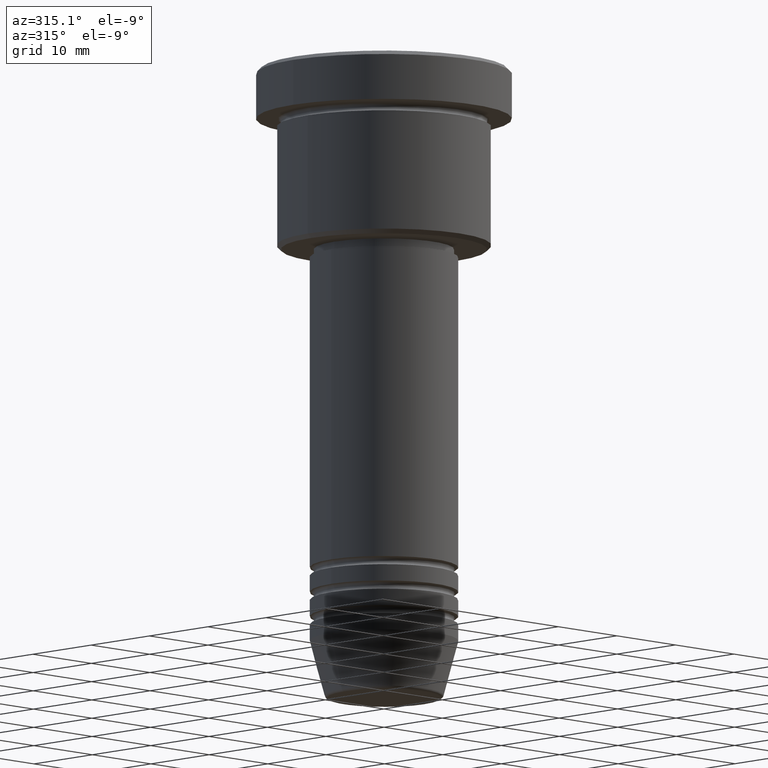
[diagram: clean part render]
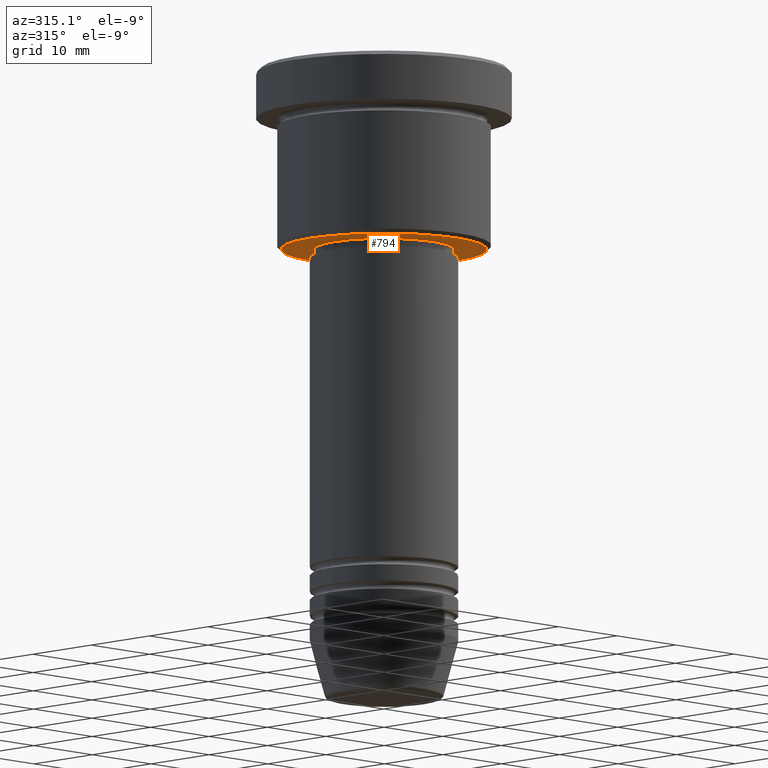
[diagram: same view with one face highlighted and labeled with its STEP entity id]
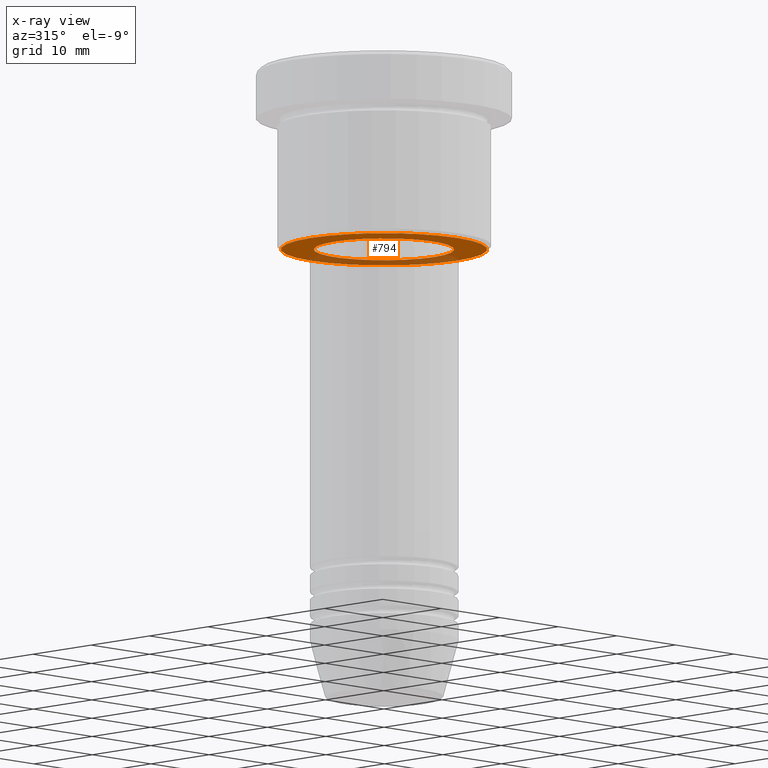
[diagram: x-ray of the same camera — body ghosted, the highlighted face saturated]
A machine part, auxiliary view. The second image highlights one B-rep face of the part: STEP entity #794.
The next image is the same camera in x-ray: the body ghosted, the highlighted face saturated — about 29% of this face is hidden behind the body in this view.
In plain terms, the highlighted planar face has unit normal (0, 0, -1).
Its self-contained STEP definition (entity closure, byte-faithful):
#49 = DIRECTION ( 'NONE',  ( 0.000000000000000000, 0.000000000000000000, -1.000000000000000000 ) ) ;
#57 = EDGE_LOOP ( 'NONE', ( #667, #792 ) ) ;
#66 = AXIS2_PLACEMENT_3D ( 'NONE', #80, #169, #441 ) ;
#68 = DIRECTION ( 'NONE',  ( -1.000000000000000000, 0.000000000000000000, -0.000000000000000000 ) ) ;
#80 = CARTESIAN_POINT ( 'NONE',  ( 0.000000000000000000, 0.000000000000000000, -22.00000000000001066 ) ) ;
#137 = DIRECTION ( 'NONE',  ( -1.000000000000000000, 0.000000000000000000, 0.000000000000000000 ) ) ;
#169 = DIRECTION ( 'NONE',  ( -0.000000000000000000, -0.000000000000000000, 1.000000000000000000 ) ) ;
#173 = EDGE_CURVE ( 'NONE', #1147, #769, #201, .T. ) ;
#197 = VERTEX_POINT ( 'NONE', #264 ) ;
#201 = CIRCLE ( 'NONE', #66, 8.499999999999998224 ) ;
#230 = DIRECTION ( 'NONE',  ( 0.000000000000000000, 0.000000000000000000, -1.000000000000000000 ) ) ;
#247 = FACE_BOUND ( 'NONE', #386, .T. ) ;
#264 = CARTESIAN_POINT ( 'NONE',  ( -12.50000000000000355, 1.561424668912875506E-15, -22.00000000000000711 ) ) ;
#266 = EDGE_CURVE ( 'NONE', #769, #1147, #848, .T. ) ;
#270 = EDGE_CURVE ( 'NONE', #197, #811, #598, .T. ) ;
#333 = AXIS2_PLACEMENT_3D ( 'NONE', #615, #230, #524 ) ;
#386 = EDGE_LOOP ( 'NONE', ( #619, #732 ) ) ;
#441 = DIRECTION ( 'NONE',  ( 1.000000000000000000, 0.000000000000000000, 0.000000000000000000 ) ) ;
#491 = CARTESIAN_POINT ( 'NONE',  ( 8.499999999999998224, 0.000000000000000000, -22.00000000000001066 ) ) ;
#514 = CARTESIAN_POINT ( 'NONE',  ( 0.000000000000000000, 13.00000000000000000, -22.00000000000000711 ) ) ;
#524 = DIRECTION ( 'NONE',  ( -1.000000000000000000, 0.000000000000000000, 0.000000000000000000 ) ) ;
#553 = DIRECTION ( 'NONE',  ( 1.000000000000000000, 0.000000000000000000, 0.000000000000000000 ) ) ;
#598 = CIRCLE ( 'NONE', #770, 12.50000000000000355 ) ;
#615 = CARTESIAN_POINT ( 'NONE',  ( 0.000000000000000000, 0.000000000000000000, -22.00000000000000711 ) ) ;
#619 = ORIENTED_EDGE ( 'NONE', *, *, #173, .T. ) ;
#667 = ORIENTED_EDGE ( 'NONE', *, *, #740, .T. ) ;
#688 = CARTESIAN_POINT ( 'NONE',  ( -8.499999999999998224, 1.040949779275249943E-15, -22.00000000000001066 ) ) ;
#732 = ORIENTED_EDGE ( 'NONE', *, *, #266, .T. ) ;
#740 = EDGE_CURVE ( 'NONE', #811, #197, #1112, .T. ) ;
#769 = VERTEX_POINT ( 'NONE', #688 ) ;
#770 = AXIS2_PLACEMENT_3D ( 'NONE', #1047, #49, #137 ) ;
#792 = ORIENTED_EDGE ( 'NONE', *, *, #270, .T. ) ;
#794 = ADVANCED_FACE ( 'NONE', ( #1063, #247 ), #1052, .T. ) ;
#798 = CARTESIAN_POINT ( 'NONE',  ( 12.50000000000000355, 0.000000000000000000, -22.00000000000000711 ) ) ;
#811 = VERTEX_POINT ( 'NONE', #798 ) ;
#813 = CARTESIAN_POINT ( 'NONE',  ( 0.000000000000000000, 0.000000000000000000, -22.00000000000001066 ) ) ;
#848 = CIRCLE ( 'NONE', #1036, 8.499999999999998224 ) ;
#888 = DIRECTION ( 'NONE',  ( 0.000000000000000000, 0.000000000000000000, -1.000000000000000000 ) ) ;
#890 = AXIS2_PLACEMENT_3D ( 'NONE', #514, #888, #68 ) ;
#1003 = DIRECTION ( 'NONE',  ( -0.000000000000000000, -0.000000000000000000, 1.000000000000000000 ) ) ;
#1036 = AXIS2_PLACEMENT_3D ( 'NONE', #813, #1003, #553 ) ;
#1047 = CARTESIAN_POINT ( 'NONE',  ( 0.000000000000000000, 0.000000000000000000, -22.00000000000000711 ) ) ;
#1052 = PLANE ( 'NONE',  #890 ) ;
#1063 = FACE_OUTER_BOUND ( 'NONE', #57, .T. ) ;
#1112 = CIRCLE ( 'NONE', #333, 12.50000000000000355 ) ;
#1147 = VERTEX_POINT ( 'NONE', #491 ) ;